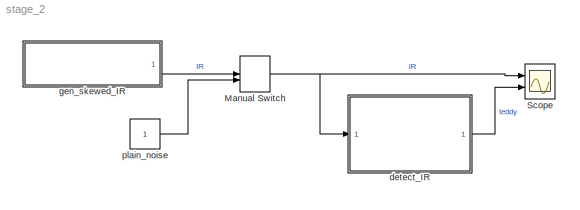
MODEL stage_2
KIND model
BLOCK [ManualSwitch] Manual Switch
  SID = 34
BLOCK [Scope] Scope
  NumInputPorts = 2
  Ports = [2]
  SID = 7
  ScopeSpecificationString = Simulink.scopes.TimeScopeBlockCfg('CurrentConfiguration', extmgr.ConfigurationSet(extmgr.Configuration('Core','General UI',true),extmgr.Configuration('Core','Source UI',true),extmgr.Configuration('Sources','WiredSimulink',true),extmgr.Configuration('Visuals','Time Domain',true,'SerializedDisplays',{struct('MinYLimReal','-0.125','MaxYLimReal','1.125','YLabelReal','','MinYLimMag','0.00000','MaxYLimM...<+2005ch>
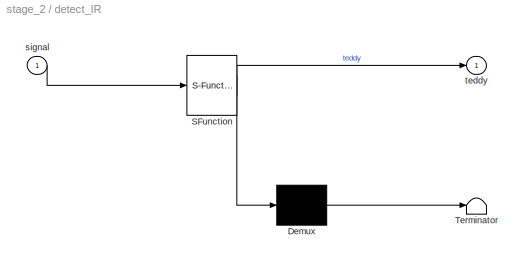
BLOCK [SubSystem] detect_IR
  ErrorFcn = Stateflow.Translate.translate
  PermitHierarchicalResolution = ExplicitOnly
  Ports = [1, 1]
  RequestExecContextInheritance = off
  SFBlockType = Chart
  SID = 15
  TreatAsAtomicUnit = on
  Variant = off
BLOCK [Demux] detect_IR/ Demux 
  Outputs = 1
  Ports = [1, 1]
  SID = 15::78
BLOCK [S-Function] detect_IR/ SFunction 
  EnableBusSupport = on
  FunctionName = sf_sfun
  PortCounts = [1 2]
  Ports = [1, 2]
  SFunctionDeploymentMode = off
  SID = 15::77
  Tag = Stateflow S-Function stage_2 3
BLOCK [Terminator] detect_IR/ Terminator 
  SID = 15::79
BLOCK [Inport] detect_IR/signal
  IconDisplay = Port number
  SID = 15::81
BLOCK [Outport] detect_IR/teddy
  IconDisplay = Port number
  SID = 15::82
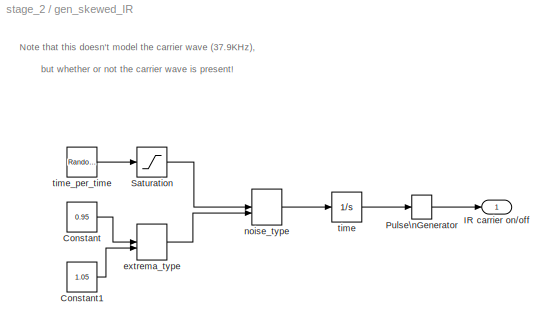
BLOCK [SubSystem] gen_skewed_IR
  Ports = [0, 1]
  RequestExecContextInheritance = off
  SID = 1
  Variant = off
BLOCK [Constant] gen_skewed_IR/Constant
  SID = 30
  Value = 0.95
BLOCK [Constant] gen_skewed_IR/Constant1
  SID = 32
  Value = 1.05
BLOCK [Outport] gen_skewed_IR/IR carrier on//off
  IconDisplay = Port number
  SID = 3
BLOCK [DiscretePulseGenerator] gen_skewed_IR/Pulse\nGenerator
  Period = .001180
  Ports = [1, 1]
  PulseType = Time based
  PulseWidth = 50
  SID = 8
  TimeSource = Use external signal
BLOCK [Saturate] gen_skewed_IR/Saturation
  InputPortMap = u0
  LowerLimit = 0.95
  Ports = [1, 1]
  SID = 27
  UpperLimit = 1.05
BLOCK [ManualSwitch] gen_skewed_IR/extrema_type
  CurrentSetting = 0
  SID = 31
BLOCK [ManualSwitch] gen_skewed_IR/noise_type
  SID = 29
BLOCK [Integrator] gen_skewed_IR/time
  Ports = [1, 1]
  SID = 22
BLOCK [RandomNumber] gen_skewed_IR/time_per_time
  Mean = 1
  SID = 21
  SampleTime = 0.000059
  Seed = 1337
  Variance = 0.05
BLOCK [Constant] plain_noise
  SID = 36
ANNOTATION gen_skewed_IR: \n \n Note that this doesn't model the carrier wave (37.9KHz), \n but whether or not the carrier wave is present! \n The random number generator models the clock drift \n between ATtiny's and ATmega's clocks. \n To see drift in effect, scale down the 'tolerance' of IR_detect.
NET Manual Switch:1 -> Scope:1, detect_IR:1
LINE detect_IR/ Demux :1 -> detect_IR/ Terminator :1
LINE detect_IR/ SFunction :1 -> detect_IR/ Demux :1
LINE detect_IR/ SFunction :2 -> detect_IR/teddy:1
LINE detect_IR/signal:1 -> detect_IR/ SFunction :1
LINE detect_IR:1 -> Scope:2
LINE gen_skewed_IR/Constant1:1 -> gen_skewed_IR/extrema_type:2
LINE gen_skewed_IR/Constant:1 -> gen_skewed_IR/extrema_type:1
LINE gen_skewed_IR/Pulse\nGenerator:1 -> gen_skewed_IR/IR carrier on//off:1
LINE gen_skewed_IR/Saturation:1 -> gen_skewed_IR/noise_type:1
LINE gen_skewed_IR/extrema_type:1 -> gen_skewed_IR/noise_type:2
LINE gen_skewed_IR/noise_type:1 -> gen_skewed_IR/time:1
LINE gen_skewed_IR/time:1 -> gen_skewed_IR/Pulse\nGenerator:1
LINE gen_skewed_IR/time_per_time:1 -> gen_skewed_IR/Saturation:1
LINE gen_skewed_IR:1 -> Manual Switch:1
LINE plain_noise:1 -> Manual Switch:2
note: NET lines group one-source signal fan-out (src -> all destinations, sorted); 1:1 wires keep LINE
CHART detect_IR states=7 transitions=11
  STATE_LABEL 'NoTeddy\\n% signal is 1,\\n% waiting for 0\\nentry:\\nteddy = 0'
  STATE_LABEL "Something\\n% signal is 0,\\n% waiting for 1\\nentry:\\n% don't change teddy"
  STATE_LABEL 'Note that the \\"signal\\" must be treated as inverted,\\nso \'0\' is \\"carrier detected\\" and \'1\' is \\"carrier absent\\"\\nTolerance:\\n- assume clock skew <= .1% (quartz has << .001%)\\n  => requirement:  tolerance >= .1% * 2 * pulse_length = 1.18µs\\n- assume that up to two periods of carrier are not detected in HW\\n  => requirement:  tolerance >= 2 * carrier_period = 53µs\\nTherefore, choose a tolerance ...<+50ch>'
  STATE_LABEL 'WasTeddy\\n% signal is 1\\n% waiting for 0\\nentry:\\nteddy = 1'
  STATE_LABEL 'TooMuch\\n% signal is 0,\\n% waiting for 1\\nentry:\\nteddy = 0'
  STATE_LABEL 'ConfirmZero'
  STATE_LABEL 'ConfirmOne'
